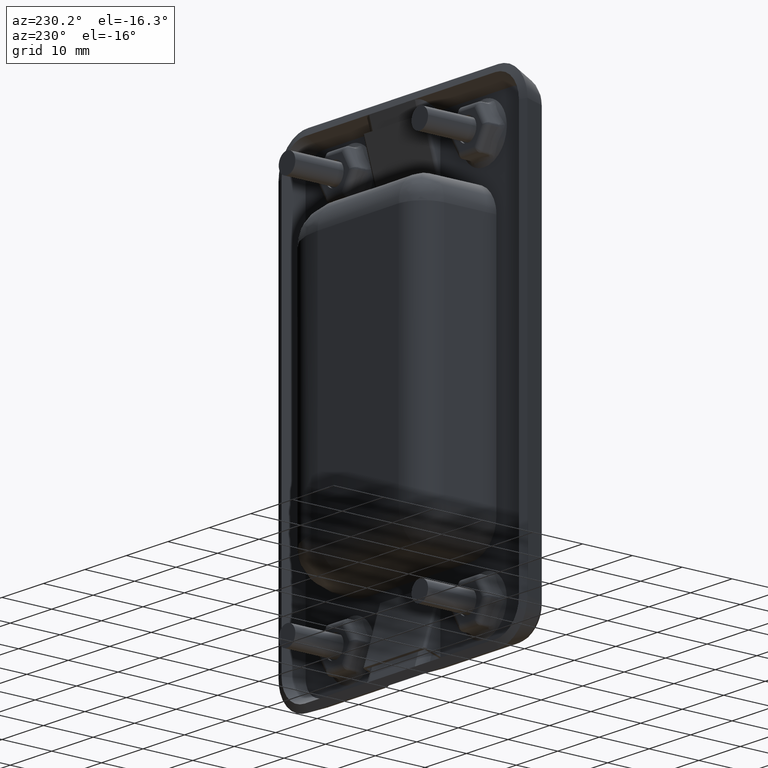
[diagram: clean part render]
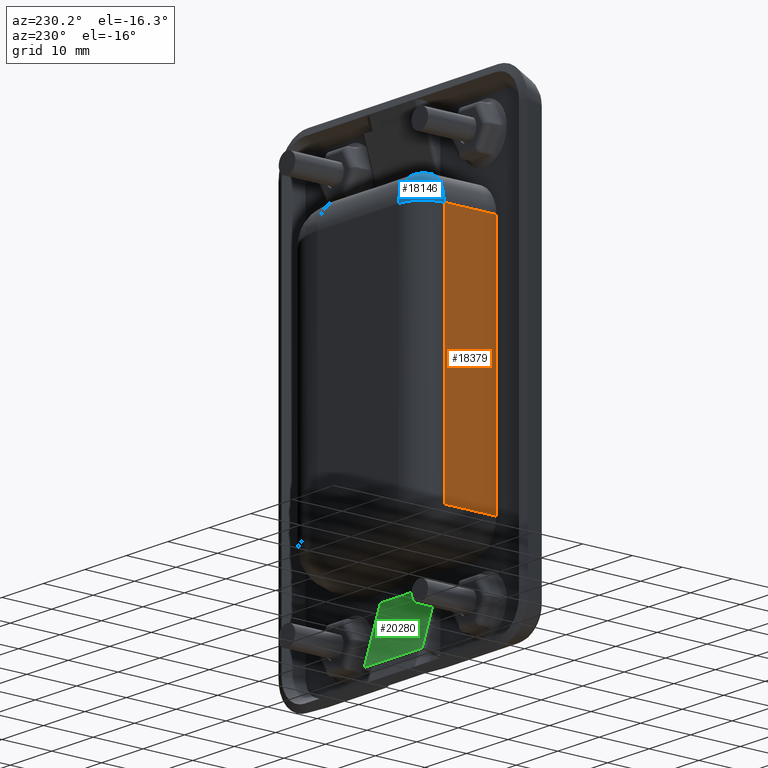
[diagram: same view with three faces highlighted in distinct colors, each labeled with its STEP entity id]
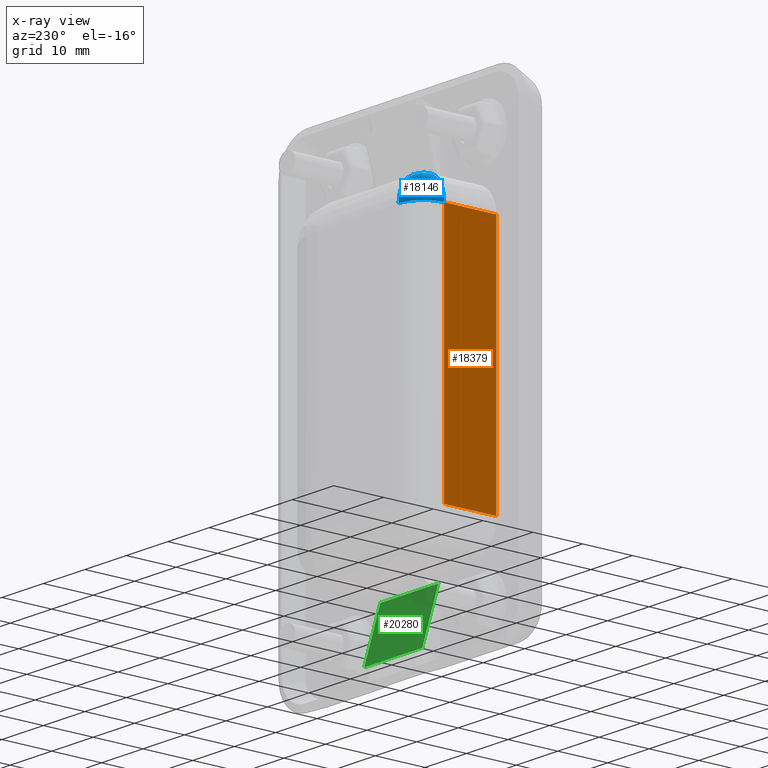
[diagram: x-ray of the same camera — body ghosted, the three highlighted faces saturated]
A machine part, auxiliary view with three faces highlighted in distinct colors.
The next image is the same camera in x-ray (body ghosted, the three faces saturated) — at least one of them is partly hidden behind the body in this view.
Their STEP definitions:

[orange] entity #18379 — the highlighted face is a freeform B-spline surface patch.
#17703=CARTESIAN_POINT('',(11.0,6.999999999999920,-24.250000000000000));
#17704=VERTEX_POINT('',#17703);
#17727=CARTESIAN_POINT('',(11.0,-3.500000000000000,-24.250000000000000));
#17728=VERTEX_POINT('',#17727);
#17742=CARTESIAN_POINT('',(11.0,6.999999999999920,-24.250000000000000));
#17743=CARTESIAN_POINT('',(11.0,-3.500000000000000,-24.250000000000000));
#17744=QUASI_UNIFORM_CURVE('',1,(#17742,#17743),.UNSPECIFIED.,.F.,.U.);
#17745=EDGE_CURVE('',#17704,#17728,#17744,.T.);
#18115=CARTESIAN_POINT('',(11.0,6.999999999999920,24.250000000000000));
#18116=VERTEX_POINT('',#18115);
#18254=CARTESIAN_POINT('',(11.0,-3.500000000000000,24.250000000000000));
#18255=VERTEX_POINT('',#18254);
#18275=CARTESIAN_POINT('',(11.0,-3.500000000000000,24.250000000000000));
#18276=CARTESIAN_POINT('',(11.0,6.999999999999920,24.250000000000000));
#18277=QUASI_UNIFORM_CURVE('',1,(#18275,#18276),.UNSPECIFIED.,.F.,.U.);
#18278=EDGE_CURVE('',#18255,#18116,#18277,.T.);
#18360=CARTESIAN_POINT('',(11.0,-4.024474979648960,-26.672574905997600));
#18361=CARTESIAN_POINT('',(11.0,-4.024474979648960,26.672576206868960));
#18362=CARTESIAN_POINT('',(11.0,7.524475261280825,-26.672574905997600));
#18363=CARTESIAN_POINT('',(11.0,7.524475261280825,26.672576206868960));
#18364=B_SPLINE_SURFACE_WITH_KNOTS('',1,1,((#18360,#18362),(#18361,#18363)),.UNSPECIFIED.,.F.,.F.,.U.,(2,2),(2,2),(0.0,53.345151112866560),(0.0,11.548950240929781),.UNSPECIFIED.);
#18365=CARTESIAN_POINT('',(11.0,-3.500000000000000,-24.250000000000000));
#18366=CARTESIAN_POINT('',(11.0,-3.500000000000000,24.250000000000000));
#18367=QUASI_UNIFORM_CURVE('',1,(#18365,#18366),.UNSPECIFIED.,.F.,.U.);
#18368=EDGE_CURVE('',#17728,#18255,#18367,.T.);
#18369=ORIENTED_EDGE('',*,*,#18368,.T.);
#18370=ORIENTED_EDGE('',*,*,#18278,.T.);
#18371=CARTESIAN_POINT('',(11.0,6.999999999999920,-24.250000000000000));
#18372=CARTESIAN_POINT('',(11.0,6.999999999999920,24.250000000000000));
#18373=QUASI_UNIFORM_CURVE('',1,(#18371,#18372),.UNSPECIFIED.,.F.,.U.);
#18374=EDGE_CURVE('',#17704,#18116,#18373,.T.);
#18375=ORIENTED_EDGE('',*,*,#18374,.F.);
#18376=ORIENTED_EDGE('',*,*,#17745,.T.);
#18377=EDGE_LOOP('',(#18369,#18370,#18375,#18376));
#18378=FACE_OUTER_BOUND('',#18377,.T.);
#18379=ADVANCED_FACE('',(#18378),#18364,.T.);

[blue] entity #18146 — the highlighted face is a freeform B-spline surface patch.
#18017=CARTESIAN_POINT('',(16.0,12.0,24.250000000000000));
#18018=VERTEX_POINT('',#18017);
#18024=CARTESIAN_POINT('',(17.0,5.999999999999920,30.250000000000000));
#18025=VERTEX_POINT('',#18024);
#18026=CARTESIAN_POINT('',(16.0,12.0,24.250000000000000));
#18027=CARTESIAN_POINT('',(16.000000000000004,11.999999999999920,30.250000000000004));
#18028=CARTESIAN_POINT('',(17.0,5.999999999999921,30.250000000000000));
#18036=(BOUNDED_CURVE()B_SPLINE_CURVE(2,(#18026,#18027,#18028),.UNSPECIFIED.,.F.,.U.)CURVE()GEOMETRIC_REPRESENTATION_ITEM()QUASI_UNIFORM_CURVE()RATIONAL_B_SPLINE_CURVE((1.0,0.707106781186548,1.0))REPRESENTATION_ITEM(''));
#18037=EDGE_CURVE('',#18018,#18025,#18036,.T.);
#18047=CARTESIAN_POINT('',(17.0,5.999999999999920,30.250000000000000));
#18048=CARTESIAN_POINT('',(16.934549414695951,6.392703511823768,30.250000000000000));
#18049=CARTESIAN_POINT('',(16.869101919023709,6.785388485857542,30.211323466215251));
#18050=CARTESIAN_POINT('',(16.740717436944038,7.555695378335824,30.058099898623521));
#18051=CARTESIAN_POINT('',(16.677784336200649,7.933293982795696,29.943556614026061));
#18052=CARTESIAN_POINT('',(16.556848799069179,8.658907205585219,29.642997776109389));
#18053=CARTESIAN_POINT('',(16.498849320486460,9.006904077081332,29.456989572642300));
#18054=CARTESIAN_POINT('',(16.390010213474341,9.659938719153725,29.020645774988260));
#18055=CARTESIAN_POINT('',(16.339173244276950,9.964960534337948,28.770320839900549));
#18056=CARTESIAN_POINT('',(16.246613193349958,10.520320839900471,28.214960534338029));
#18057=CARTESIAN_POINT('',(16.204892369787530,10.770645781275240,27.909938709744551));
#18058=CARTESIAN_POINT('',(16.132168405607391,11.206989566355150,27.256904086490682));
#18059=CARTESIAN_POINT('',(16.101167035925979,11.392997784443621,26.908907185464489));
#18060=CARTESIAN_POINT('',(16.051073899051449,11.693556605691660,26.183294002916590));
#18061=CARTESIAN_POINT('',(16.031983349264010,11.808099904415720,25.805695349216169));
#18062=CARTESIAN_POINT('',(16.012830404763150,11.923017571421090,25.227965223537101));
#18063=CARTESIAN_POINT('',(16.008022876214810,11.951862742711089,25.033506873862461));
#18064=CARTESIAN_POINT('',(16.001607670440791,11.990353977355110,24.642698810092291));
#18065=CARTESIAN_POINT('',(16.000000000008178,11.999999999999920,24.446349656063290));
#18066=CARTESIAN_POINT('',(16.0,11.999999999999920,24.250000000000000));
#18067=CARTESIAN_POINT('',(17.0,5.999999999999920,30.250000000000000));
#18068=CARTESIAN_POINT('',(16.770923539407196,6.229076460593002,30.250000026342548));
#18069=CARTESIAN_POINT('',(16.541855641973143,6.458144358025984,30.243875547076815));
#18070=CARTESIAN_POINT('',(16.073589037607590,6.926410962393130,30.215813174870298));
#18071=CARTESIAN_POINT('',(15.834375388868486,7.165624611131165,30.193972046115860));
#18072=CARTESIAN_POINT('',(15.335664223996231,7.664335776003963,30.122526384062816));
#18073=CARTESIAN_POINT('',(15.076049099023390,7.923950900976831,30.073101325498499));
#18074=CARTESIAN_POINT('',(14.528020450134374,8.471979549865258,29.921909139910849));
#18075=CARTESIAN_POINT('',(14.239261900514812,8.760738099484831,29.820276683188993));
#18076=CARTESIAN_POINT('',(13.632479329201775,9.367520670798426,29.522027295004758));
#18077=CARTESIAN_POINT('',(13.313805967287122,9.686194032712796,29.325014655318316));
#18078=CARTESIAN_POINT('',(12.669651101286142,10.330348898713789,28.776810352127104));
#18079=CARTESIAN_POINT('',(12.343741098252130,10.656258901747725,28.423834795054137));
#18080=CARTESIAN_POINT('',(11.749864354438120,11.250135645561855,27.517524291644843));
#18081=CARTESIAN_POINT('',(11.483345103415727,11.516654896584198,26.961696482482356));
#18082=CARTESIAN_POINT('',(11.200961882784455,11.799038117215472,26.005847962071289));
#18083=CARTESIAN_POINT('',(11.126501248481203,11.873498751518806,25.667863458243829));
#18084=CARTESIAN_POINT('',(11.025983180787435,11.974016819212405,24.969859130811479));
#18085=CARTESIAN_POINT('',(11.000000001849331,11.999999998150587,24.610014780206388));
#18086=CARTESIAN_POINT('',(11.0,11.999999999999920,24.250000000000004));
#18087=CARTESIAN_POINT('',(17.0,5.999999999999920,30.250000000000000));
#18088=CARTESIAN_POINT('',(16.607296488176210,6.065450585303806,30.250000000000000));
#18089=CARTESIAN_POINT('',(16.214611514142259,6.130898080976173,30.211323466215219));
#18090=CARTESIAN_POINT('',(15.444304621664219,6.259282563055923,30.058099898623549));
#18091=CARTESIAN_POINT('',(15.066706017203771,6.322215663799194,29.943556614025869));
#18092=CARTESIAN_POINT('',(14.341092794415150,6.443151200930825,29.642997776109571));
#18093=CARTESIAN_POINT('',(13.993095922918689,6.501150679513502,29.456989572642371));
#18094=CARTESIAN_POINT('',(13.340061280846090,6.609989786525542,29.020645774988189));
#18095=CARTESIAN_POINT('',(13.035039465661660,6.660826755722873,28.770320839900240));
#18096=CARTESIAN_POINT('',(12.479679160099771,6.753386806650065,28.214960534338339));
#18097=CARTESIAN_POINT('',(12.229354218724710,6.795107630212426,27.909938709744580));
#18098=CARTESIAN_POINT('',(11.793010433644760,6.867831594392505,27.256904086490650));
#18099=CARTESIAN_POINT('',(11.607002215556250,6.898832964073878,26.908907185464368));
#18100=CARTESIAN_POINT('',(11.306443394308310,6.948926100948534,26.183294002916710));
#18101=CARTESIAN_POINT('',(11.191900095584201,6.968016650735881,25.805695349216169));
#18102=CARTESIAN_POINT('',(11.076982428578830,6.987169595236785,25.227965223537101));
#18103=CARTESIAN_POINT('',(11.048137257288831,6.991977123785122,25.033506873862471));
#18104=CARTESIAN_POINT('',(11.009646022644811,6.998392329559112,24.642698810092291));
#18105=CARTESIAN_POINT('',(11.0,6.999999999991703,24.446349656063308));
#18106=CARTESIAN_POINT('',(11.0,6.999999999999920,24.250000000000000));
#18114=(BOUNDED_SURFACE()B_SPLINE_SURFACE(3,2,((#18047,#18067,#18087),(#18048,#18068,#18088),(#18049,#18069,#18089),(#18050,#18070,#18090),(#18051,#18071,#18091),(#18052,#18072,#18092),(#18053,#18073,#18093),(#18054,#18074,#18094),(#18055,#18075,#18095),(#18056,#18076,#18096),(#18057,#18077,#18097),(#18058,#18078,#18098),(#18059,#18079,#18099),(#18060,#18080,#18100),(#18061,#18081,#18101),(#18062,#18082,#18102),(#18063,#18083,#18103),(#18064,#18084,#18104),(#18065,#18085,#18105),(#18066,#18086,#18106)),.UNSPECIFIED.,.F.,.F.,.U.)B_SPLINE_SURFACE_WITH_KNOTS((4,2,2,2,2,2,2,2,2,4),(3,3),(1.570796326794897,1.767145867644259,1.963495408493621,2.159844949342983,2.356194490192345,2.552544031041707,2.748893571891069,2.945243112740431,3.043417883165112,3.141592653589793),(0.0,1.0),.UNSPECIFIED.)GEOMETRIC_REPRESENTATION_ITEM()RATIONAL_B_SPLINE_SURFACE(((1.0,1.0,1.0),(1.0,1.000009747438938,1.0),(1.0,0.996761323091685,1.0),(1.0,0.984117151856056,1.0),(1.0,0.974710801407087,1.0),(1.0,0.950674038355226,1.0),(1.0,0.936042179272607,1.0),(1.0,0.903165104413790,1.0),(1.0,0.884919139464390,1.0),(1.0,0.847131668104487,1.0),(1.0,0.827594258916169,1.0),(1.0,0.790218019327172,1.0),(1.0,0.772396809498841,1.0),(1.0,0.741833430198363,1.0),(1.0,0.729128884886274,1.0),(1.0,0.716091729964351,1.0),(1.0,0.712741805032674,1.0),(1.0,0.708248947786207,1.0),(1.0,0.707104435038508,1.0),(1.0,0.707106781186548,1.0)))REPRESENTATION_ITEM('')SURFACE());
#18115=CARTESIAN_POINT('',(11.0,6.999999999999920,24.250000000000000));
#18116=VERTEX_POINT('',#18115);
#18117=CARTESIAN_POINT('',(11.0,6.999999999999920,24.250000000000000));
#18118=CARTESIAN_POINT('',(11.0,11.999999999999920,24.250000000000004));
#18119=CARTESIAN_POINT('',(16.0,12.0,24.250000000000000));
#18127=(BOUNDED_CURVE()B_SPLINE_CURVE(2,(#18117,#18118,#18119),.UNSPECIFIED.,.F.,.U.)CURVE()GEOMETRIC_REPRESENTATION_ITEM()QUASI_UNIFORM_CURVE()RATIONAL_B_SPLINE_CURVE((1.0,0.707106781186548,1.0))REPRESENTATION_ITEM(''));
#18128=EDGE_CURVE('',#18116,#18018,#18127,.T.);
#18129=ORIENTED_EDGE('',*,*,#18128,.F.);
#18130=CARTESIAN_POINT('',(11.0,6.999999999999921,24.250000000000000));
#18131=CARTESIAN_POINT('',(11.000000000000005,6.999999999999921,30.250000000000004));
#18132=CARTESIAN_POINT('',(17.0,5.999999999999920,30.250000000000000));
#18140=(BOUNDED_CURVE()B_SPLINE_CURVE(2,(#18130,#18131,#18132),.UNSPECIFIED.,.F.,.U.)CURVE()GEOMETRIC_REPRESENTATION_ITEM()QUASI_UNIFORM_CURVE()RATIONAL_B_SPLINE_CURVE((1.0,0.707106781186548,1.0))REPRESENTATION_ITEM(''));
#18141=EDGE_CURVE('',#18116,#18025,#18140,.T.);
#18142=ORIENTED_EDGE('',*,*,#18141,.T.);
#18143=ORIENTED_EDGE('',*,*,#18037,.F.);
#18144=EDGE_LOOP('',(#18129,#18142,#18143));
#18145=FACE_OUTER_BOUND('',#18144,.T.);
#18146=ADVANCED_FACE('',(#18145),#18114,.T.);

[green] entity #20280 — the highlighted face is a freeform B-spline surface patch.
#6658=CARTESIAN_POINT('',(25.0,-0.273532584110867,-42.904721753367802));
#6659=VERTEX_POINT('',#6658);
#6675=CARTESIAN_POINT('',(39.0,-0.273532584110867,-42.904721753367802));
#6676=VERTEX_POINT('',#6675);
#6677=CARTESIAN_POINT('',(39.0,-0.273532584110867,-42.904721753367802));
#6678=CARTESIAN_POINT('',(25.0,-0.273532584110867,-42.904721753367802));
#6679=QUASI_UNIFORM_CURVE('',1,(#6677,#6678),.UNSPECIFIED.,.F.,.U.);
#6680=EDGE_CURVE('',#6676,#6659,#6679,.T.);
#6970=CARTESIAN_POINT('',(39.0,-3.500000000000000,-31.928037619456699));
#6971=VERTEX_POINT('',#6970);
#6972=CARTESIAN_POINT('',(39.0,-3.500000000000000,-31.928037619456699));
#6973=CARTESIAN_POINT('',(39.0,-0.273532584110867,-42.904721753367802));
#6974=QUASI_UNIFORM_CURVE('',1,(#6972,#6973),.UNSPECIFIED.,.F.,.U.);
#6975=EDGE_CURVE('',#6971,#6676,#6974,.T.);
#7024=CARTESIAN_POINT('',(25.0,-3.500000000000000,-31.928037619456699));
#7025=VERTEX_POINT('',#7024);
#7039=CARTESIAN_POINT('',(25.0,-0.273532584110867,-42.904721753367802));
#7040=CARTESIAN_POINT('',(25.0,-3.500000000000000,-31.928037619456699));
#7041=QUASI_UNIFORM_CURVE('',1,(#7039,#7040),.UNSPECIFIED.,.F.,.U.);
#7042=EDGE_CURVE('',#6659,#7025,#7041,.T.);
#20265=CARTESIAN_POINT('',(24.300700027134720,-0.112370936681705,-43.453005765045383));
#20266=CARTESIAN_POINT('',(24.300700027134720,-3.661162108979031,-31.379752037551860));
#20267=CARTESIAN_POINT('',(39.699300348374543,-0.112370936681705,-43.453005765045383));
#20268=CARTESIAN_POINT('',(39.699300348374543,-3.661162108979031,-31.379752037551860));
#20269=B_SPLINE_SURFACE_WITH_KNOTS('',1,1,((#20265,#20267),(#20266,#20268)),.UNSPECIFIED.,.F.,.F.,.U.,(2,2),(2,2),(0.0,12.584012649112040),(0.0,15.398600321239829),.UNSPECIFIED.);
#20270=ORIENTED_EDGE('',*,*,#6680,.T.);
#20271=ORIENTED_EDGE('',*,*,#7042,.T.);
#20272=CARTESIAN_POINT('',(39.0,-3.500000000000000,-31.928037619456699));
#20273=CARTESIAN_POINT('',(25.0,-3.500000000000000,-31.928037619456699));
#20274=QUASI_UNIFORM_CURVE('',1,(#20272,#20273),.UNSPECIFIED.,.F.,.U.);
#20275=EDGE_CURVE('',#6971,#7025,#20274,.T.);
#20276=ORIENTED_EDGE('',*,*,#20275,.F.);
#20277=ORIENTED_EDGE('',*,*,#6975,.T.);
#20278=EDGE_LOOP('',(#20270,#20271,#20276,#20277));
#20279=FACE_OUTER_BOUND('',#20278,.T.);
#20280=ADVANCED_FACE('',(#20279),#20269,.T.);